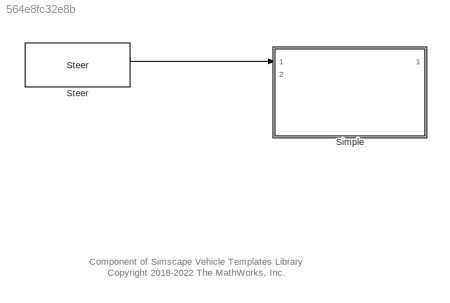
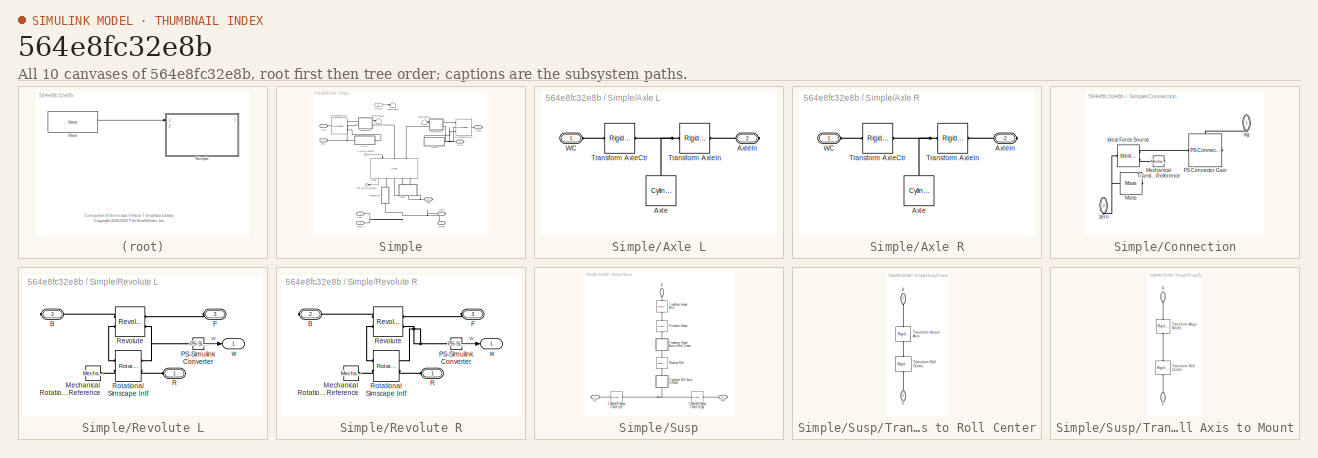
[diagram: thumbnail index - all 10 canvases of the model, root first then tree order]
MODEL slx_564e8fc32e8b
KIND library
CONFIG AbsTol = auto
CONFIG EnableMultiTasking = off
CONFIG FixedStep = auto
CONFIG MaxStep = auto
CONFIG MinStep = auto
CONFIG RelTol = 1e-3
CONFIG SampleTimeConstraint = Unconstrained
CONFIG SolverName = VariableStepAuto
CONFIG StartTime = 0.0
CONFIG StopTime = 10.0
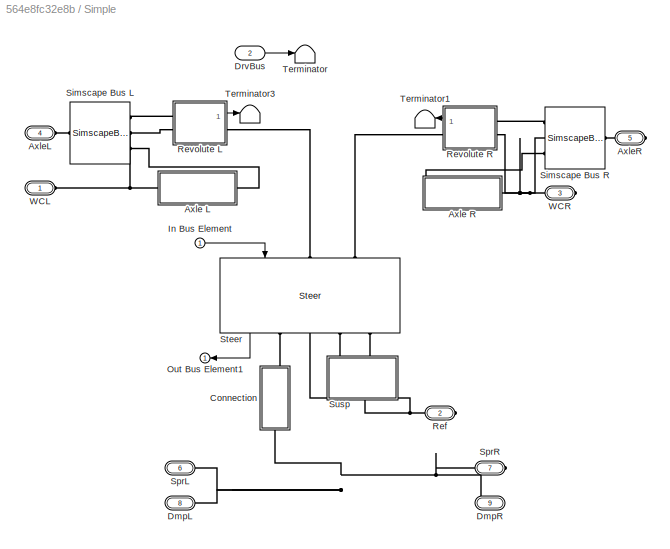
BLOCK [SubSystem] Simple
  Ports = [2, 1, 0, 0, 0, 4, 5]
  RequestExecContextInheritance = off
  VariantControl = Simple
BLOCK [SubSystem] Simple/Axle L
  Ports = [0, 0, 0, 0, 0, 1, 1]
  RequestExecContextInheritance = off
BLOCK [Reference] Simple/Axle L/Axle  REF=sm_lib/Body Elements/Cylindrical Solid
  NameLocation = left
  Ports = [0, 0, 0, 0, 0, 0, 1]
  SourceBlock = sm_lib/Body Elements/Cylindrical Solid
  SourceProductBaseCode = MS
  SourceType = Cylindrical Solid
BLOCK [PMIOPort] Simple/Axle L/AxleIn
  Port = 2
  Side = Right
BLOCK [Reference] Simple/Axle L/Transform AxleCtr  REF=sm_lib/Frames and
Transforms/Rigid
Transform
  Ports = [0, 0, 0, 0, 0, 1, 1]
  SourceBlock = sm_lib/Frames and\nTransforms/Rigid\nTransform
  SourceProductBaseCode = MS
  SourceType = Rigid\nTransform
BLOCK [Reference] Simple/Axle L/Transform AxleIn  REF=sm_lib/Frames and
Transforms/Rigid
Transform
  Ports = [0, 0, 0, 0, 0, 1, 1]
  SourceBlock = sm_lib/Frames and\nTransforms/Rigid\nTransform
  SourceProductBaseCode = MS
  SourceType = Rigid\nTransform
BLOCK [PMIOPort] Simple/Axle L/WC
  Side = Left
BLOCK [SubSystem] Simple/Axle R
  Ports = [0, 0, 0, 0, 0, 1, 1]
  RequestExecContextInheritance = off
BLOCK [Reference] Simple/Axle R/Axle  REF=sm_lib/Body Elements/Cylindrical Solid
  NameLocation = left
  Ports = [0, 0, 0, 0, 0, 0, 1]
  SourceBlock = sm_lib/Body Elements/Cylindrical Solid
  SourceProductBaseCode = MS
  SourceType = Cylindrical Solid
BLOCK [PMIOPort] Simple/Axle R/AxleIn
  Port = 2
  Side = Right
BLOCK [Reference] Simple/Axle R/Transform AxleCtr  REF=sm_lib/Frames and
Transforms/Rigid
Transform
  Ports = [0, 0, 0, 0, 0, 1, 1]
  SourceBlock = sm_lib/Frames and\nTransforms/Rigid\nTransform
  SourceProductBaseCode = MS
  SourceType = Rigid\nTransform
BLOCK [Reference] Simple/Axle R/Transform AxleIn  REF=sm_lib/Frames and
Transforms/Rigid
Transform
  Ports = [0, 0, 0, 0, 0, 1, 1]
  SourceBlock = sm_lib/Frames and\nTransforms/Rigid\nTransform
  SourceProductBaseCode = MS
  SourceType = Rigid\nTransform
BLOCK [PMIOPort] Simple/Axle R/WC
  Side = Left
BLOCK [PMIOPort] Simple/AxleL
  NameLocation = top
  Port = 4
  Side = Left
BLOCK [PMIOPort] Simple/AxleR
  NameLocation = top
  Port = 5
  Side = Right
BLOCK [SubSystem] Simple/Connection
  NameLocation = left
  Ports = [0, 0, 0, 0, 0, 1, 1]
  RequestExecContextInheritance = off
BLOCK [Reference] Simple/Connection/Ideal Force Source  REF=fl_lib/Mechanical/Mechanical Sources/Ideal Force Source
  Ports = [0, 0, 0, 0, 0, 1, 2]
  SourceBlock = fl_lib/Mechanical/Mechanical Sources/Ideal Force Source
  SourceProductBaseCode = PW,SS,VE
  SourceType = Ideal Force Source
BLOCK [Reference] Simple/Connection/Mass  REF=fl_lib/Mechanical/Translational
Elements/Mass
  NameLocation = top
  Ports = [0, 0, 0, 0, 0, 1]
  SourceBlock = fl_lib/Mechanical/Translational\nElements/Mass
  SourceProductBaseCode = PW,SS,VE
  SourceType = Mass
BLOCK [Reference] Simple/Connection/Mechanical Translational Reference  REF=fl_lib/Mechanical/Translational
Elements/Mechanical
Translational
Reference
  Ports = [0, 0, 0, 0, 0, 1]
  SourceBlock = fl_lib/Mechanical/Translational\nElements/Mechanical\nTranslational\nReference
  SourceProductBaseCode = PW,SS,VE
  SourceType = Mechanical\nTranslational\nReference
BLOCK [Reference] Simple/Connection/PS Connector Gain  REF=Custom_lib/PS Connector Gain
  Ports = [0, 0, 0, 0, 0, 1, 1]
  SourceBlock = Custom_lib/PS Connector Gain
  SourceType = PS Connector Gain
BLOCK [PMIOPort] Simple/Connection/sig
  NameLocation = left
  Side = Left
BLOCK [PMIOPort] Simple/Connection/zero
  NameLocation = left
  Port = 2
  Side = Right
BLOCK [PMIOPort] Simple/DmpL
  Port = 8
  Side = Left
BLOCK [PMIOPort] Simple/DmpR
  Port = 9
  Side = Right
BLOCK [Inport] Simple/DrvBus
  Port = 2
BLOCK [Inport] Simple/In Bus Element
BLOCK [Outport] Simple/Out Bus Element1
  VectorParamsAs1DForOutWhenUnconnected = off
BLOCK [PMIOPort] Simple/Ref
  Port = 2
  Side = Right
BLOCK [SubSystem] Simple/Revolute L
  Ports = [0, 1, 0, 0, 0, 2, 1]
  RequestExecContextInheritance = off
BLOCK [PMIOPort] Simple/Revolute L/B
  Port = 2
  Side = Right
BLOCK [PMIOPort] Simple/Revolute L/F
  Port = 3
  Side = Left
BLOCK [Reference] Simple/Revolute L/Mechanical Rotational Reference  REF=fl_lib/Mechanical/Rotational Elements/Mechanical
Rotational Reference
  Ports = [0, 0, 0, 0, 0, 1]
  SourceBlock = fl_lib/Mechanical/Rotational Elements/Mechanical\nRotational Reference
  SourceProductBaseCode = PW,SS,VE
  SourceType = Mechanical\nRotational Reference
BLOCK [Reference] Simple/Revolute L/PS-Simulink Converter  REF=nesl_utility/PS-Simulink
Converter
  Ports = [0, 1, 0, 0, 0, 1]
  SourceBlock = nesl_utility/PS-Simulink\nConverter
  SourceProductBaseCode = SS,PW,VE
  SourceType = PS-Simulink\nConverter
BLOCK [PMIOPort] Simple/Revolute L/R
  Side = Left
BLOCK [Reference] Simple/Revolute L/Revolute  REF=sm_lib/Joints/Revolute Joint
  Ports = [0, 0, 0, 0, 0, 2, 2]
  SourceBlock = sm_lib/Joints/Revolute Joint
  SourceProductBaseCode = MS
  SourceType = Revolute Joint
BLOCK [Reference] Simple/Revolute L/Rotational Simscape Intf  REF=sm_car_lib/Utilities/Rotational  (lib defined in slx_05426f0848b6, slx_5dc2867fb1c9)
Simscape Intf
  Ports = [0, 0, 0, 0, 0, 2, 2]
  SourceBlock = sm_car_lib/Utilities/Rotational\nSimscape Intf
  SourceType = SubSystem
BLOCK [Outport] Simple/Revolute L/w
  VectorParamsAs1DForOutWhenUnconnected = off
BLOCK [SubSystem] Simple/Revolute R
  Ports = [0, 1, 0, 0, 0, 2, 1]
  RequestExecContextInheritance = off
BLOCK [PMIOPort] Simple/Revolute R/B
  Port = 2
  Side = Right
BLOCK [PMIOPort] Simple/Revolute R/F
  Port = 3
  Side = Left
BLOCK [Reference] Simple/Revolute R/Mechanical Rotational Reference  REF=fl_lib/Mechanical/Rotational Elements/Mechanical
Rotational Reference
  Ports = [0, 0, 0, 0, 0, 1]
  SourceBlock = fl_lib/Mechanical/Rotational Elements/Mechanical\nRotational Reference
  SourceProductBaseCode = PW,SS,VE
  SourceType = Mechanical\nRotational Reference
BLOCK [Reference] Simple/Revolute R/PS-Simulink Converter  REF=nesl_utility/PS-Simulink
Converter
  Ports = [0, 1, 0, 0, 0, 1]
  SourceBlock = nesl_utility/PS-Simulink\nConverter
  SourceProductBaseCode = SS,PW,VE
  SourceType = PS-Simulink\nConverter
BLOCK [PMIOPort] Simple/Revolute R/R
  Side = Left
BLOCK [Reference] Simple/Revolute R/Revolute  REF=sm_lib/Joints/Revolute Joint
  Ports = [0, 0, 0, 0, 0, 2, 2]
  SourceBlock = sm_lib/Joints/Revolute Joint
  SourceProductBaseCode = MS
  SourceType = Revolute Joint
BLOCK [Reference] Simple/Revolute R/Rotational Simscape Intf  REF=sm_car_lib/Utilities/Rotational  (lib defined in slx_05426f0848b6, slx_5dc2867fb1c9)
Simscape Intf
  Ports = [0, 0, 0, 0, 0, 2, 2]
  SourceBlock = sm_car_lib/Utilities/Rotational\nSimscape Intf
  SourceType = SubSystem
BLOCK [Outport] Simple/Revolute R/w
  VectorParamsAs1DForOutWhenUnconnected = off
BLOCK [SimscapeBus] Simple/Simscape Bus L
  HierarchyStrings = Axle1D;RaceSpin;AxleIn
  NameLocation = top
  Ports = [0, 0, 0, 0, 0, 3, 1]
BLOCK [SimscapeBus] Simple/Simscape Bus R
  HierarchyStrings = Axle1D;RaceSpin;AxleIn
  NameLocation = top
  Ports = [0, 0, 0, 0, 0, 3, 1]
BLOCK [PMIOPort] Simple/SprL
  Port = 6
  Side = Left
BLOCK [PMIOPort] Simple/SprR
  Port = 7
  Side = Right
BLOCK [Reference] Simple/Steer  REF=Steer_Ackermann_Systems/Steer
  AttributesFormatString = %<ActiveVariant>
  NameLocation = right
  Ports = [1, 1, 0, 0, 0, 2, 4]
  SourceBlock = Steer_Ackermann_Systems/Steer
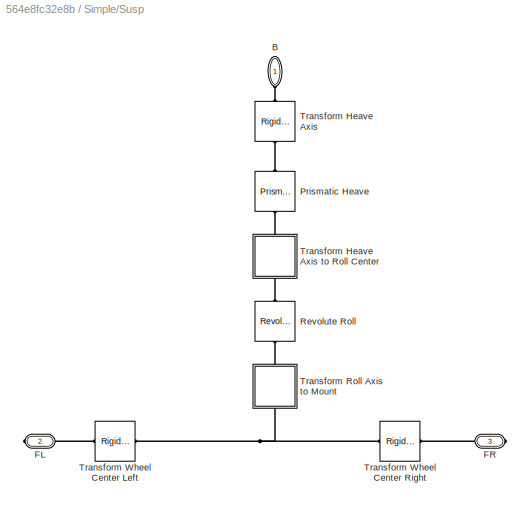
BLOCK [SubSystem] Simple/Susp
  NameLocation = right
  Ports = [0, 0, 0, 0, 0, 1, 2]
  RequestExecContextInheritance = off
BLOCK [PMIOPort] Simple/Susp/B
  NameLocation = left
  Side = Left
BLOCK [PMIOPort] Simple/Susp/FL
  Port = 2
  Side = Right
BLOCK [PMIOPort] Simple/Susp/FR
  Port = 3
  Side = Right
BLOCK [Reference] Simple/Susp/Prismatic Heave  REF=sm_lib/Joints/Prismatic
Joint
  NameLocation = left
  Ports = [0, 0, 0, 0, 0, 1, 1]
  SourceBlock = sm_lib/Joints/Prismatic\nJoint
  SourceProductBaseCode = MS
  SourceType = Prismatic\nJoint
BLOCK [Reference] Simple/Susp/Revolute Roll  REF=sm_lib/Joints/Revolute Joint
  NameLocation = left
  Ports = [0, 0, 0, 0, 0, 1, 1]
  SourceBlock = sm_lib/Joints/Revolute Joint
  SourceProductBaseCode = MS
  SourceType = Revolute Joint
BLOCK [Reference] Simple/Susp/Transform Heave Axis  REF=sm_lib/Frames and
Transforms/Rigid
Transform
  NameLocation = left
  Ports = [0, 0, 0, 0, 0, 1, 1]
  SourceBlock = sm_lib/Frames and\nTransforms/Rigid\nTransform
  SourceProductBaseCode = MS
  SourceType = Rigid\nTransform
BLOCK [SubSystem] Simple/Susp/Transform Heave Axis to Roll Center
  NameLocation = left
  Ports = [0, 0, 0, 0, 0, 1, 1]
  RequestExecContextInheritance = off
BLOCK [PMIOPort] Simple/Susp/Transform Heave Axis to Roll Center/B
  NameLocation = left
  Side = Left
BLOCK [PMIOPort] Simple/Susp/Transform Heave Axis to Roll Center/F
  NameLocation = left
  Port = 2
  Side = Right
BLOCK [Reference] Simple/Susp/Transform Heave Axis to Roll Center/Transform Heave Axis  REF=sm_lib/Frames and
Transforms/Rigid
Transform
  NameLocation = right
  Ports = [0, 0, 0, 0, 0, 1, 1]
  SourceBlock = sm_lib/Frames and\nTransforms/Rigid\nTransform
  SourceProductBaseCode = MS
  SourceType = Rigid\nTransform
BLOCK [Reference] Simple/Susp/Transform Heave Axis to Roll Center/Transform Roll Center  REF=sm_lib/Frames and
Transforms/Rigid
Transform
  NameLocation = right
  Ports = [0, 0, 0, 0, 0, 1, 1]
  SourceBlock = sm_lib/Frames and\nTransforms/Rigid\nTransform
  SourceProductBaseCode = MS
  SourceType = Rigid\nTransform
BLOCK [SubSystem] Simple/Susp/Transform Roll Axis to Mount
  NameLocation = left
  Ports = [0, 0, 0, 0, 0, 1, 1]
  RequestExecContextInheritance = off
BLOCK [PMIOPort] Simple/Susp/Transform Roll Axis to Mount/B
  NameLocation = left
  Side = Left
BLOCK [PMIOPort] Simple/Susp/Transform Roll Axis to Mount/F
  NameLocation = left
  Port = 2
  Side = Right
BLOCK [Reference] Simple/Susp/Transform Roll Axis to Mount/Transform Align World   REF=sm_lib/Frames and
Transforms/Rigid
Transform
  NameLocation = left
  Ports = [0, 0, 0, 0, 0, 1, 1]
  SourceBlock = sm_lib/Frames and\nTransforms/Rigid\nTransform
  SourceProductBaseCode = MS
  SourceType = Rigid\nTransform
BLOCK [Reference] Simple/Susp/Transform Roll Axis to Mount/Transform Roll Center  REF=sm_lib/Frames and
Transforms/Rigid
Transform
  NameLocation = left
  Ports = [0, 0, 0, 0, 0, 1, 1]
  SourceBlock = sm_lib/Frames and\nTransforms/Rigid\nTransform
  SourceProductBaseCode = MS
  SourceType = Rigid\nTransform
BLOCK [Reference] Simple/Susp/Transform Wheel Center Left  REF=sm_lib/Frames and
Transforms/Rigid
Transform
  Ports = [0, 0, 0, 0, 0, 1, 1]
  SourceBlock = sm_lib/Frames and\nTransforms/Rigid\nTransform
  SourceProductBaseCode = MS
  SourceType = Rigid\nTransform
BLOCK [Reference] Simple/Susp/Transform Wheel Center Right  REF=sm_lib/Frames and
Transforms/Rigid
Transform
  Ports = [0, 0, 0, 0, 0, 1, 1]
  SourceBlock = sm_lib/Frames and\nTransforms/Rigid\nTransform
  SourceProductBaseCode = MS
  SourceType = Rigid\nTransform
BLOCK [Terminator] Simple/Terminator
BLOCK [Terminator] Simple/Terminator1
BLOCK [Terminator] Simple/Terminator3
BLOCK [PMIOPort] Simple/WCL
  Side = Left
BLOCK [PMIOPort] Simple/WCR
  Port = 3
  Side = Right
BLOCK [Reference] Steer  REF=sm_car_lib/Control/Steer  (lib defined in slx_05426f0848b6, slx_5dc2867fb1c9)
  Ports = [2, 2]
  SourceBlock = sm_car_lib/Control/Steer
ANNOTATION (root): Component of Simscape Vehicle Templates Library <copyright redacted>
LINE Steer:1 -> Simple:1
